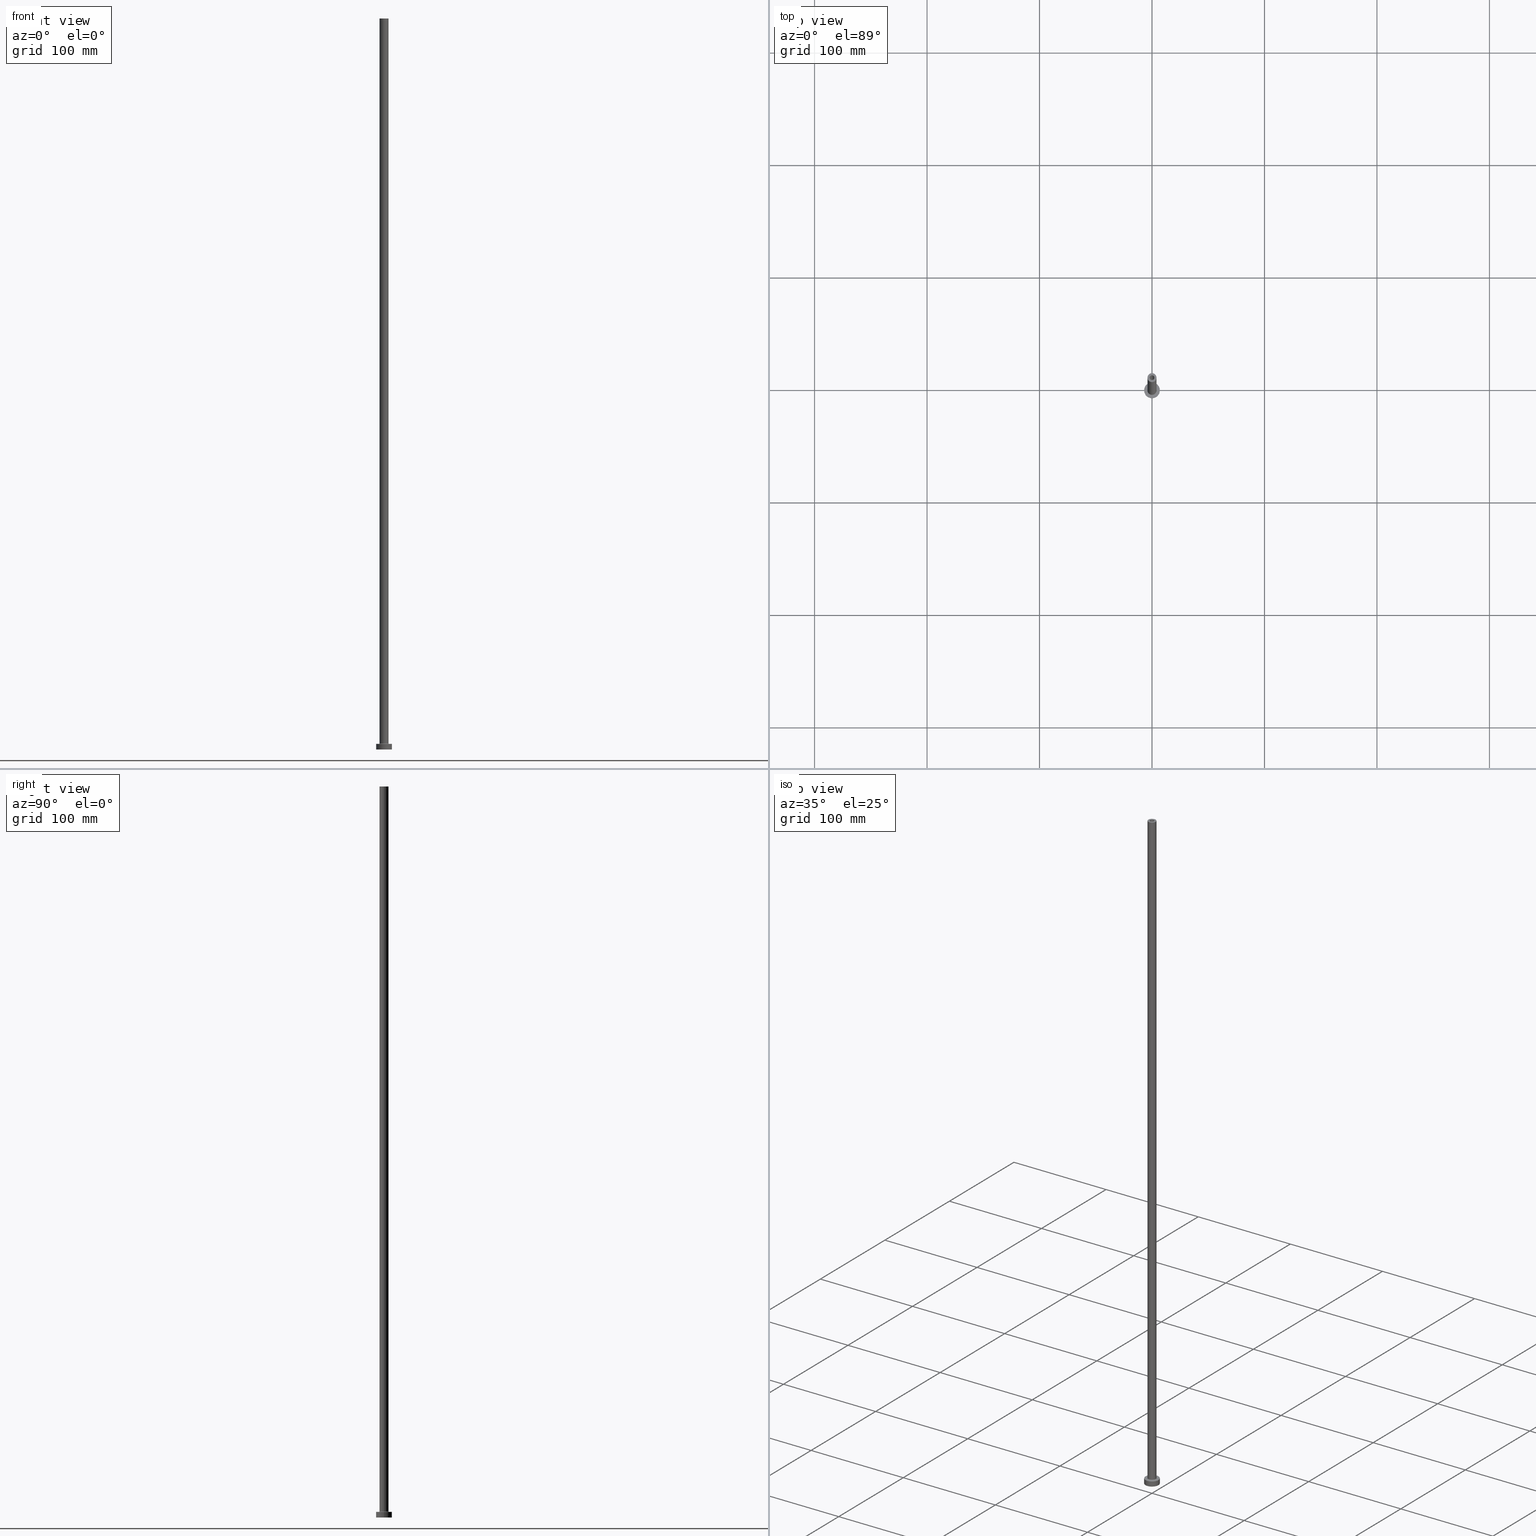
[diagram: canonical four-view strip — front | top / right | iso, engineering-drawing reading convention]
A machine part, canonical four-view strip (front | top / right | iso — engineering-drawing reading convention). The complete STEP part file that produces these views, byte-faithful:
ISO-10303-21;
HEADER;
FILE_DESCRIPTION (( 'STEP AP203' ),
    '1' );
FILE_NAME ('4951.STEP',
    '2023-02-13T17:29:50',
    ( '' ),
    ( '' ),
    'SwSTEP 2.0',
    'SolidWorks 2019',
    '' );
FILE_SCHEMA (( 'CONFIG_CONTROL_DESIGN' ));
ENDSEC;

DATA;
#1 = DIRECTION ( 'NONE',  ( 0.000000000000000000, 0.000000000000000000, 1.000000000000000000 ) ) ;
#2 = CIRCLE ( 'NONE', #24, 7.000000000000000000 ) ;
#3 = ORGANIZATION ( 'NEUR�EN�', 'NEUR�EN�', '' ) ;
#4 = DIRECTION ( 'NONE',  ( 1.000000000000000000, 0.000000000000000000, 0.000000000000000000 ) ) ;
#5 = DIRECTION ( 'NONE',  ( -1.000000000000000000, 0.000000000000000000, 0.000000000000000000 ) ) ;
#6 = CC_DESIGN_PERSON_AND_ORGANIZATION_ASSIGNMENT ( #442, #87, ( #378 ) ) ;
#7 = CYLINDRICAL_SURFACE ( 'NONE', #40, 4.000000000000000000 ) ;
#8 = FACE_OUTER_BOUND ( 'NONE', #368, .T. ) ;
#9 = VECTOR ( 'NONE', #189, 1000.000000000000000 ) ;
#10 = DIRECTION ( 'NONE',  ( 1.000000000000000000, 0.000000000000000000, 0.000000000000000000 ) ) ;
#11 =( NAMED_UNIT ( * ) SI_UNIT ( $, .STERADIAN. ) SOLID_ANGLE_UNIT ( ) );
#12 = ADVANCED_FACE ( 'NONE', ( #64, #148 ), #266, .T. ) ;
#13 = ORIENTED_EDGE ( 'NONE', *, *, #437, .F. ) ;
#14 = DIRECTION ( 'NONE',  ( 0.000000000000000000, 0.000000000000000000, 1.000000000000000000 ) ) ;
#15 = DIRECTION ( 'NONE',  ( 0.000000000000000000, 0.000000000000000000, 1.000000000000000000 ) ) ;
#16 = AXIS2_PLACEMENT_3D ( 'NONE', #205, #310, #457 ) ;
#17 = DATE_TIME_ROLE ( 'classification_date' ) ;
#18 = ORIENTED_EDGE ( 'NONE', *, *, #437, .T. ) ;
#19 = VERTEX_POINT ( 'NONE', #409 ) ;
#20 = LINE ( 'NONE', #339, #244 ) ;
#21 = ADVANCED_FACE ( 'NONE', ( #443, #120 ), #262, .T. ) ;
#22 = ORIENTED_EDGE ( 'NONE', *, *, #274, .F. ) ;
#23 = ORIENTED_EDGE ( 'NONE', *, *, #126, .F. ) ;
#24 = AXIS2_PLACEMENT_3D ( 'NONE', #38, #200, #433 ) ;
#25 = ORIENTED_EDGE ( 'NONE', *, *, #187, .F. ) ;
#26 = AXIS2_PLACEMENT_3D ( 'NONE', #30, #33, #416 ) ;
#27 = FACE_OUTER_BOUND ( 'NONE', #146, .T. ) ;
#28 = ORIENTED_EDGE ( 'NONE', *, *, #183, .T. ) ;
#29 = LINE ( 'NONE', #305, #333 ) ;
#30 = CARTESIAN_POINT ( 'NONE',  ( 0.000000000000000000, 0.000000000000000000, 650.0000000000000000 ) ) ;
#31 = ADVANCED_FACE ( 'NONE', ( #381 ), #101, .F. ) ;
#32 = DIRECTION ( 'NONE',  ( 0.000000000000000000, 0.000000000000000000, 1.000000000000000000 ) ) ;
#33 = DIRECTION ( 'NONE',  ( 0.000000000000000000, 0.000000000000000000, -1.000000000000000000 ) ) ;
#34 = CIRCLE ( 'NONE', #276, 2.100000000000000089 ) ;
#35 = ORIENTED_EDGE ( 'NONE', *, *, #67, .F. ) ;
#36 = DIRECTION ( 'NONE',  ( 0.000000000000000000, 0.000000000000000000, 1.000000000000000000 ) ) ;
#37 = CALENDAR_DATE ( 2023, 13, 2 ) ;
#38 = CARTESIAN_POINT ( 'NONE',  ( 0.000000000000000000, 0.000000000000000000, 5.000000000000000000 ) ) ;
#39 = DIRECTION ( 'NONE',  ( 0.000000000000000000, 0.000000000000000000, 1.000000000000000000 ) ) ;
#40 = AXIS2_PLACEMENT_3D ( 'NONE', #246, #435, #108 ) ;
#41 = DIRECTION ( 'NONE',  ( 0.000000000000000000, 0.000000000000000000, 1.000000000000000000 ) ) ;
#42 = CC_DESIGN_PERSON_AND_ORGANIZATION_ASSIGNMENT ( #224, #222, ( #116 ) ) ;
#43 = CARTESIAN_POINT ( 'NONE',  ( 0.000000000000000000, 0.000000000000000000, 650.0000000000000000 ) ) ;
#44 = VERTEX_POINT ( 'NONE', #210 ) ;
#45 = CARTESIAN_POINT ( 'NONE',  ( 0.000000000000000000, 0.000000000000000000, 0.000000000000000000 ) ) ;
#46 = AXIS2_PLACEMENT_3D ( 'NONE', #285, #41, #139 ) ;
#47 = ADVANCED_FACE ( 'NONE', ( #241, #424 ), #134, .F. ) ;
#48 = CALENDAR_DATE ( 2023, 13, 2 ) ;
#49 = EDGE_LOOP ( 'NONE', ( #280, #351 ) ) ;
#50 = DATE_AND_TIME ( #48, #141 ) ;
#51 = VERTEX_POINT ( 'NONE', #306 ) ;
#52 = ORIENTED_EDGE ( 'NONE', *, *, #347, .F. ) ;
#53 = CALENDAR_DATE ( 2023, 13, 2 ) ;
#54 = ORIENTED_EDGE ( 'NONE', *, *, #61, .T. ) ;
#55 = CARTESIAN_POINT ( 'NONE',  ( -2.250000000000000000, 0.000000000000000000, 0.000000000000000000 ) ) ;
#56 = VECTOR ( 'NONE', #147, 1000.000000000000000 ) ;
#57 = AXIS2_PLACEMENT_3D ( 'NONE', #168, #133, #459 ) ;
#58 = APPROVAL_STATUS ( 'not_yet_approved' ) ;
#59 = EDGE_LOOP ( 'NONE', ( #35, #344, #337, #301 ) ) ;
#60 = DIRECTION ( 'NONE',  ( 0.000000000000000000, 0.000000000000000000, -1.000000000000000000 ) ) ;
#61 = EDGE_CURVE ( 'NONE', #155, #331, #281, .T. ) ;
#62 = DATE_TIME_ROLE ( 'creation_date' ) ;
#63 = DIRECTION ( 'NONE',  ( 1.000000000000000000, 0.000000000000000000, 0.000000000000000000 ) ) ;
#64 = FACE_BOUND ( 'NONE', #197, .T. ) ;
#65 = ORIENTED_EDGE ( 'NONE', *, *, #274, .T. ) ;
#66 = CIRCLE ( 'NONE', #284, 7.000000000000000000 ) ;
#67 = EDGE_CURVE ( 'NONE', #166, #298, #341, .T. ) ;
#68 = ORIENTED_EDGE ( 'NONE', *, *, #397, .T. ) ;
#69 = FACE_OUTER_BOUND ( 'NONE', #129, .T. ) ;
#70 = AXIS2_PLACEMENT_3D ( 'NONE', #357, #39, #184 ) ;
#71 = APPROVAL_PERSON_ORGANIZATION ( #366, #363, #446 ) ;
#72 = CARTESIAN_POINT ( 'NONE',  ( 0.000000000000000000, 0.000000000000000000, 605.0000000000000000 ) ) ;
#73 = EDGE_CURVE ( 'NONE', #331, #412, #214, .T. ) ;
#74 = TOROIDAL_SURFACE ( 'NONE', #70, 4.500000000000000888, 0.5000000000000000000 ) ;
#75 = CC_DESIGN_SECURITY_CLASSIFICATION ( #116, ( #378 ) ) ;
#76 = DIRECTION ( 'NONE',  ( 0.000000000000000000, 0.000000000000000000, 1.000000000000000000 ) ) ;
#77 = PRODUCT ( '4951', '4951', '', ( #292 ) ) ;
#78 = ORIENTED_EDGE ( 'NONE', *, *, #403, .F. ) ;
#79 = DIRECTION ( 'NONE',  ( 1.000000000000000000, 0.000000000000000000, 0.000000000000000000 ) ) ;
#80 = EDGE_CURVE ( 'NONE', #152, #204, #173, .T. ) ;
#81 = VERTEX_POINT ( 'NONE', #175 ) ;
#82 = AXIS2_PLACEMENT_3D ( 'NONE', #138, #282, #79 ) ;
#83 = VECTOR ( 'NONE', #172, 1000.000000000000000 ) ;
#84 = ORIENTED_EDGE ( 'NONE', *, *, #338, .T. ) ;
#85 = SECURITY_CLASSIFICATION_LEVEL ( 'unclassified' ) ;
#86 = DIRECTION ( 'NONE',  ( 0.000000000000000000, 0.000000000000000000, 1.000000000000000000 ) ) ;
#87 = PERSON_AND_ORGANIZATION_ROLE ( 'creator' ) ;
#88 = EDGE_CURVE ( 'NONE', #51, #155, #436, .T. ) ;
#89 = CARTESIAN_POINT ( 'NONE',  ( -4.000000000000000000, 0.000000000000000000, 650.0000000000000000 ) ) ;
#90 = PERSON_AND_ORGANIZATION ( #127, #3 ) ;
#91 = CARTESIAN_POINT ( 'NONE',  ( 0.000000000000000000, 0.000000000000000000, 650.0000000000000000 ) ) ;
#92 = EDGE_CURVE ( 'NONE', #271, #401, #180, .T. ) ;
#93 = ORIENTED_EDGE ( 'NONE', *, *, #283, .T. ) ;
#94 = ORIENTED_EDGE ( 'NONE', *, *, #80, .F. ) ;
#95 = CIRCLE ( 'NONE', #393, 0.5000000000000004441 ) ;
#96 = CARTESIAN_POINT ( 'NONE',  ( 0.000000000000000000, 0.000000000000000000, 5.000000000000000000 ) ) ;
#97 = CC_DESIGN_APPROVAL ( #363, ( #116 ) ) ;
#98 = SHAPE_DEFINITION_REPRESENTATION ( #361, #426 ) ;
#99 = DIRECTION ( 'NONE',  ( -1.000000000000000000, 0.000000000000000000, 0.000000000000000000 ) ) ;
#100 = ORIENTED_EDGE ( 'NONE', *, *, #347, .T. ) ;
#101 = CYLINDRICAL_SURFACE ( 'NONE', #26, 2.100000000000000089 ) ;
#102 = UNCERTAINTY_MEASURE_WITH_UNIT (LENGTH_MEASURE( 1.000000000000000082E-05 ), #379, 'distance_accuracy_value', 'NONE');
#103 = APPROVAL_DATE_TIME ( #386, #363 ) ;
#104 = ADVANCED_FACE ( 'NONE', ( #69 ), #174, .F. ) ;
#105 = ORIENTED_EDGE ( 'NONE', *, *, #439, .F. ) ;
#106 = AXIS2_PLACEMENT_3D ( 'NONE', #111, #286, #394 ) ;
#107 = DIRECTION ( 'NONE',  ( -0.000000000000000000, -0.000000000000000000, -1.000000000000000000 ) ) ;
#108 = DIRECTION ( 'NONE',  ( -1.000000000000000000, 0.000000000000000000, 0.000000000000000000 ) ) ;
#109 = CARTESIAN_POINT ( 'NONE',  ( 4.000000000000000000, 4.898587196589411843E-16, 5.499999999999949374 ) ) ;
#110 = APPROVAL ( #261, 'NEUR�EN�' ) ;
#111 = CARTESIAN_POINT ( 'NONE',  ( 0.000000000000000000, 0.000000000000000000, 605.0000000000000000 ) ) ;
#112 = CARTESIAN_POINT ( 'NONE',  ( -2.100000000000000089, 0.000000000000000000, 605.0000000000000000 ) ) ;
#113 = CIRCLE ( 'NONE', #251, 7.000000000000000000 ) ;
#114 = CARTESIAN_POINT ( 'NONE',  ( 0.000000000000000000, 0.000000000000000000, 650.0000000000000000 ) ) ;
#115 = LOCAL_TIME ( 18, 29, 50.00000000000000000, #369 ) ;
#116 = SECURITY_CLASSIFICATION ( '', '', #85 ) ;
#117 = AXIS2_PLACEMENT_3D ( 'NONE', #207, #209, #376 ) ;
#118 = ORIENTED_EDGE ( 'NONE', *, *, #92, .T. ) ;
#119 = APPLICATION_PROTOCOL_DEFINITION ( 'international standard', 'config_control_design', 1994, #235 ) ;
#120 = FACE_OUTER_BOUND ( 'NONE', #441, .T. ) ;
#121 = CARTESIAN_POINT ( 'NONE',  ( 4.500000000000000888, 0.000000000000000000, 4.999999999999975131 ) ) ;
#122 = CC_DESIGN_PERSON_AND_ORGANIZATION_ASSIGNMENT ( #295, #404, ( #378 ) ) ;
#123 = LINE ( 'NONE', #264, #417 ) ;
#124 = LINE ( 'NONE', #226, #327 ) ;
#125 = TOROIDAL_SURFACE ( 'NONE', #318, 4.500000000000000888, 0.5000000000000000000 ) ;
#126 = EDGE_CURVE ( 'NONE', #309, #44, #29, .T. ) ;
#127 = PERSON ( 'NEUR�EN�', 'NEUR�EN�', 'NEUR�EN�', ('NEUR�EN�'), ('NEUR�EN�'), ('NEUR�EN�') ) ;
#128 = ORIENTED_EDGE ( 'NONE', *, *, #137, .T. ) ;
#129 = EDGE_LOOP ( 'NONE', ( #233, #220, #54, #202 ) ) ;
#130 = AXIS2_PLACEMENT_3D ( 'NONE', #371, #448, #63 ) ;
#131 = DIRECTION ( 'NONE',  ( 1.000000000000000000, 0.000000000000000000, 0.000000000000000000 ) ) ;
#132 = ADVANCED_FACE ( 'NONE', ( #342 ), #304, .F. ) ;
#133 = DIRECTION ( 'NONE',  ( 0.000000000000000000, 0.000000000000000000, -1.000000000000000000 ) ) ;
#134 = PLANE ( 'NONE',  #308 ) ;
#135 = DIRECTION ( 'NONE',  ( 1.000000000000000000, 0.000000000000000000, 0.000000000000000000 ) ) ;
#136 = CIRCLE ( 'NONE', #106, 2.250000000000000000 ) ;
#137 = EDGE_CURVE ( 'NONE', #401, #271, #326, .T. ) ;
#138 = CARTESIAN_POINT ( 'NONE',  ( 0.000000000000000000, 0.000000000000000000, 650.0000000000000000 ) ) ;
#139 = DIRECTION ( 'NONE',  ( 1.000000000000000000, 0.000000000000000000, -0.000000000000000000 ) ) ;
#140 =( NAMED_UNIT ( * ) PLANE_ANGLE_UNIT ( ) SI_UNIT ( $, .RADIAN. ) );
#141 = LOCAL_TIME ( 18, 29, 50.00000000000000000, #410 ) ;
#142 = AXIS2_PLACEMENT_3D ( 'NONE', #72, #452, #135 ) ;
#143 = DIRECTION ( 'NONE',  ( 0.000000000000000000, 0.000000000000000000, 1.000000000000000000 ) ) ;
#144 = ADVANCED_FACE ( 'NONE', ( #278 ), #383, .T. ) ;
#145 = CALENDAR_DATE ( 2023, 13, 2 ) ;
#146 = EDGE_LOOP ( 'NONE', ( #367, #430, #68, #350 ) ) ;
#147 = DIRECTION ( 'NONE',  ( -0.000000000000000000, -0.000000000000000000, -1.000000000000000000 ) ) ;
#148 = FACE_OUTER_BOUND ( 'NONE', #218, .T. ) ;
#149 = CARTESIAN_POINT ( 'NONE',  ( 0.000000000000000000, 0.000000000000000000, 0.000000000000000000 ) ) ;
#150 = AXIS2_PLACEMENT_3D ( 'NONE', #43, #392, #5 ) ;
#151 = EDGE_CURVE ( 'NONE', #204, #152, #34, .T. ) ;
#152 = VERTEX_POINT ( 'NONE', #352 ) ;
#153 = CLOSED_SHELL ( 'NONE', ( #31, #132, #208, #159, #144, #460, #12, #302, #265, #21, #454, #104, #47, #391 ) ) ;
#154 = CALENDAR_DATE ( 2023, 13, 2 ) ;
#155 = VERTEX_POINT ( 'NONE', #253 ) ;
#156 = CARTESIAN_POINT ( 'NONE',  ( 0.000000000000000000, 0.000000000000000000, 5.499999999999949374 ) ) ;
#157 = DATE_AND_TIME ( #154, #256 ) ;
#158 = DIRECTION ( 'NONE',  ( -1.000000000000000000, 0.000000000000000000, 0.000000000000000000 ) ) ;
#159 = ADVANCED_FACE ( 'NONE', ( #432 ), #7, .T. ) ;
#160 = DATE_AND_TIME ( #145, #115 ) ;
#161 = DIRECTION ( 'NONE',  ( 0.000000000000000000, 0.000000000000000000, -1.000000000000000000 ) ) ;
#162 = AXIS2_PLACEMENT_3D ( 'NONE', #149, #272, #221 ) ;
#163 = LOCAL_TIME ( 18, 29, 50.00000000000000000, #362 ) ;
#164 = ORIENTED_EDGE ( 'NONE', *, *, #239, .T. ) ;
#165 = DIRECTION ( 'NONE',  ( 0.000000000000000000, 0.000000000000000000, -1.000000000000000000 ) ) ;
#166 = VERTEX_POINT ( 'NONE', #212 ) ;
#167 = DIRECTION ( 'NONE',  ( 1.000000000000000000, 0.000000000000000000, 0.000000000000000000 ) ) ;
#168 = CARTESIAN_POINT ( 'NONE',  ( 0.000000000000000000, 0.000000000000000000, 611.3639610306788654 ) ) ;
#169 = ORIENTED_EDGE ( 'NONE', *, *, #176, .T. ) ;
#170 = CIRCLE ( 'NONE', #440, 7.000000000000000000 ) ;
#171 = DIRECTION ( 'NONE',  ( -1.000000000000000000, 0.000000000000000000, 0.000000000000000000 ) ) ;
#172 = DIRECTION ( 'NONE',  ( 0.000000000000000000, 0.000000000000000000, -1.000000000000000000 ) ) ;
#173 = CIRCLE ( 'NONE', #252, 2.100000000000000089 ) ;
#174 = CYLINDRICAL_SURFACE ( 'NONE', #57, 2.250000000000000000 ) ;
#175 = CARTESIAN_POINT ( 'NONE',  ( 2.100000000000000089, 2.571758278209441957E-16, 650.0000000000000000 ) ) ;
#176 = EDGE_CURVE ( 'NONE', #177, #421, #179, .T. ) ;
#177 = VERTEX_POINT ( 'NONE', #396 ) ;
#178 = CARTESIAN_POINT ( 'NONE',  ( -4.500000000000000888, 5.510910596163089556E-16, 5.499999999999949374 ) ) ;
#179 = CIRCLE ( 'NONE', #268, 4.000000000000000000 ) ;
#180 = CIRCLE ( 'NONE', #277, 4.500000000000000888 ) ;
#181 = CARTESIAN_POINT ( 'NONE',  ( -7.000000000000000000, 0.000000000000000000, 5.000000000000000000 ) ) ;
#182 = FACE_BOUND ( 'NONE', #247, .T. ) ;
#183 = EDGE_CURVE ( 'NONE', #242, #81, #300, .T. ) ;
#184 = DIRECTION ( 'NONE',  ( 1.000000000000000000, 0.000000000000000000, 0.000000000000000000 ) ) ;
#185 = CIRCLE ( 'NONE', #360, 2.100000000000000089 ) ;
#186 = COORDINATED_UNIVERSAL_TIME_OFFSET ( 1, 0, .AHEAD. ) ;
#187 = EDGE_CURVE ( 'NONE', #19, #44, #170, .T. ) ;
#188 = DATE_AND_TIME ( #53, #163 ) ;
#189 = DIRECTION ( 'NONE',  ( -0.000000000000000000, -0.000000000000000000, -1.000000000000000000 ) ) ;
#190 = CIRCLE ( 'NONE', #456, 0.5000000000000004441 ) ;
#191 = PERSON_AND_ORGANIZATION ( #127, #3 ) ;
#192 = CARTESIAN_POINT ( 'NONE',  ( 0.000000000000000000, 0.000000000000000000, 5.000000000000000000 ) ) ;
#193 = LINE ( 'NONE', #336, #307 ) ;
#194 = DIRECTION ( 'NONE',  ( 0.000000000000000000, 0.000000000000000000, -1.000000000000000000 ) ) ;
#195 = ORIENTED_EDGE ( 'NONE', *, *, #287, .T. ) ;
#196 = LINE ( 'NONE', #267, #9 ) ;
#197 = EDGE_LOOP ( 'NONE', ( #128, #118 ) ) ;
#198 = CARTESIAN_POINT ( 'NONE',  ( 0.000000000000000000, 0.000000000000000000, 5.000000000000000000 ) ) ;
#199 = ORIENTED_EDGE ( 'NONE', *, *, #183, .F. ) ;
#200 = DIRECTION ( 'NONE',  ( 0.000000000000000000, 0.000000000000000000, 1.000000000000000000 ) ) ;
#201 = ORIENTED_EDGE ( 'NONE', *, *, #73, .F. ) ;
#202 = ORIENTED_EDGE ( 'NONE', *, *, #73, .T. ) ;
#203 = APPROVAL ( #219, 'NEUR�EN�' ) ;
#204 = VERTEX_POINT ( 'NONE', #112 ) ;
#205 = CARTESIAN_POINT ( 'NONE',  ( 0.000000000000000000, 0.000000000000000000, 5.000000000000000000 ) ) ;
#206 = AXIS2_PLACEMENT_3D ( 'NONE', #270, #232, #406 ) ;
#207 = CARTESIAN_POINT ( 'NONE',  ( 0.000000000000000000, 0.000000000000000000, 0.000000000000000000 ) ) ;
#208 = ADVANCED_FACE ( 'NONE', ( #325 ), #74, .F. ) ;
#209 = DIRECTION ( 'NONE',  ( -0.000000000000000000, -0.000000000000000000, -1.000000000000000000 ) ) ;
#210 = CARTESIAN_POINT ( 'NONE',  ( 7.000000000000000000, 8.572527594031473190E-16, 0.000000000000000000 ) ) ;
#211 = APPLICATION_CONTEXT ( 'configuration controlled 3d designs of mechanical parts and assemblies' ) ;
#212 = CARTESIAN_POINT ( 'NONE',  ( -4.000000000000000000, 0.000000000000000000, 5.499999999999949374 ) ) ;
#213 = AXIS2_PLACEMENT_3D ( 'NONE', #96, #455, #131 ) ;
#214 = CIRCLE ( 'NONE', #117, 2.250000000000000000 ) ;
#215 = CARTESIAN_POINT ( 'NONE',  ( 0.000000000000000000, 0.000000000000000000, 0.000000000000000000 ) ) ;
#216 = CC_DESIGN_PERSON_AND_ORGANIZATION_ASSIGNMENT ( #90, #257, ( #294 ) ) ;
#217 = EDGE_CURVE ( 'NONE', #166, #271, #95, .T. ) ;
#218 = EDGE_LOOP ( 'NONE', ( #65, #93 ) ) ;
#219 = APPROVAL_STATUS ( 'not_yet_approved' ) ;
#220 = ORIENTED_EDGE ( 'NONE', *, *, #88, .T. ) ;
#221 = DIRECTION ( 'NONE',  ( 1.000000000000000000, 0.000000000000000000, 0.000000000000000000 ) ) ;
#222 = PERSON_AND_ORGANIZATION_ROLE ( 'classification_officer' ) ;
#223 = VERTEX_POINT ( 'NONE', #181 ) ;
#224 = PERSON_AND_ORGANIZATION ( #127, #3 ) ;
#225 = ORIENTED_EDGE ( 'NONE', *, *, #239, .F. ) ;
#226 = CARTESIAN_POINT ( 'NONE',  ( 2.250000000000000000, 2.755455298081544285E-16, 611.3639610306788654 ) ) ;
#227 = LOCAL_TIME ( 18, 29, 50.00000000000000000, #415 ) ;
#228 = APPROVAL_ROLE ( '' ) ;
#229 = ORIENTED_EDGE ( 'NONE', *, *, #187, .T. ) ;
#230 = CARTESIAN_POINT ( 'NONE',  ( 0.000000000000000000, 0.000000000000000000, 650.0000000000000000 ) ) ;
#231 = CC_DESIGN_DATE_AND_TIME_ASSIGNMENT ( #188, #17, ( #116 ) ) ;
#232 = DIRECTION ( 'NONE',  ( 0.000000000000000000, 0.000000000000000000, 1.000000000000000000 ) ) ;
#233 = ORIENTED_EDGE ( 'NONE', *, *, #427, .F. ) ;
#234 = DIRECTION ( 'NONE',  ( 0.000000000000000000, 0.000000000000000000, 1.000000000000000000 ) ) ;
#235 = APPLICATION_CONTEXT ( 'configuration controlled 3d designs of mechanical parts and assemblies' ) ;
#236 = EDGE_LOOP ( 'NONE', ( #23, #22, #380, #229 ) ) ;
#237 = EDGE_LOOP ( 'NONE', ( #411, #387 ) ) ;
#238 = CIRCLE ( 'NONE', #130, 4.000000000000000000 ) ;
#239 = EDGE_CURVE ( 'NONE', #44, #19, #66, .T. ) ;
#240 = EDGE_LOOP ( 'NONE', ( #450, #348, #375, #447 ) ) ;
#241 = FACE_BOUND ( 'NONE', #237, .T. ) ;
#242 = VERTEX_POINT ( 'NONE', #431 ) ;
#243 = ORIENTED_EDGE ( 'NONE', *, *, #283, .F. ) ;
#244 = VECTOR ( 'NONE', #296, 1000.000000000000000 ) ;
#245 = AXIS2_PLACEMENT_3D ( 'NONE', #192, #15, #290 ) ;
#246 = CARTESIAN_POINT ( 'NONE',  ( 0.000000000000000000, 0.000000000000000000, 650.0000000000000000 ) ) ;
#247 = EDGE_LOOP ( 'NONE', ( #201, #359 ) ) ;
#248 = CARTESIAN_POINT ( 'NONE',  ( 0.000000000000000000, 0.000000000000000000, 5.000000000000000000 ) ) ;
#249 = CYLINDRICAL_SURFACE ( 'NONE', #150, 4.000000000000000000 ) ;
#250 = DIRECTION ( 'NONE',  ( 1.224646799147353207E-16, 1.000000000000000000, -0.000000000000000000 ) ) ;
#251 = AXIS2_PLACEMENT_3D ( 'NONE', #248, #14, #254 ) ;
#252 = AXIS2_PLACEMENT_3D ( 'NONE', #422, #32, #167 ) ;
#253 = CARTESIAN_POINT ( 'NONE',  ( -2.250000000000000000, 0.000000000000000000, 605.0000000000000000 ) ) ;
#254 = DIRECTION ( 'NONE',  ( 1.000000000000000000, 0.000000000000000000, 0.000000000000000000 ) ) ;
#255 = EDGE_CURVE ( 'NONE', #155, #51, #136, .T. ) ;
#256 = LOCAL_TIME ( 18, 29, 50.00000000000000000, #186 ) ;
#257 = PERSON_AND_ORGANIZATION_ROLE ( 'creator' ) ;
#258 = ORIENTED_EDGE ( 'NONE', *, *, #338, .F. ) ;
#259 = APPROVAL_PERSON_ORGANIZATION ( #191, #203, #228 ) ;
#260 = DIRECTION ( 'NONE',  ( 0.000000000000000000, 0.000000000000000000, 1.000000000000000000 ) ) ;
#261 = APPROVAL_STATUS ( 'not_yet_approved' ) ;
#262 = PLANE ( 'NONE',  #269 ) ;
#263 = PERSON_AND_ORGANIZATION_ROLE ( 'design_owner' ) ;
#264 = CARTESIAN_POINT ( 'NONE',  ( 2.100000000000000089, 2.571758278209441957E-16, 650.0000000000000000 ) ) ;
#265 = ADVANCED_FACE ( 'NONE', ( #438 ), #249, .T. ) ;
#266 = PLANE ( 'NONE',  #245 ) ;
#267 = CARTESIAN_POINT ( 'NONE',  ( -7.000000000000000000, 0.000000000000000000, 5.000000000000000000 ) ) ;
#268 = AXIS2_PLACEMENT_3D ( 'NONE', #114, #76, #324 ) ;
#269 = AXIS2_PLACEMENT_3D ( 'NONE', #405, #86, #317 ) ;
#270 = CARTESIAN_POINT ( 'NONE',  ( 0.000000000000000000, 0.000000000000000000, 0.000000000000000000 ) ) ;
#271 = VERTEX_POINT ( 'NONE', #461 ) ;
#272 = DIRECTION ( 'NONE',  ( -0.000000000000000000, -0.000000000000000000, -1.000000000000000000 ) ) ;
#273 = ORIENTED_EDGE ( 'NONE', *, *, #67, .T. ) ;
#274 = EDGE_CURVE ( 'NONE', #223, #309, #2, .T. ) ;
#275 = CARTESIAN_POINT ( 'NONE',  ( 0.000000000000000000, 0.000000000000000000, 611.3639610306788654 ) ) ;
#276 = AXIS2_PLACEMENT_3D ( 'NONE', #349, #36, #323 ) ;
#277 = AXIS2_PLACEMENT_3D ( 'NONE', #198, #314, #413 ) ;
#278 = FACE_OUTER_BOUND ( 'NONE', #451, .T. ) ;
#279 = FACE_OUTER_BOUND ( 'NONE', #236, .T. ) ;
#280 = ORIENTED_EDGE ( 'NONE', *, *, #255, .F. ) ;
#281 = LINE ( 'NONE', #311, #83 ) ;
#282 = DIRECTION ( 'NONE',  ( 0.000000000000000000, 0.000000000000000000, 1.000000000000000000 ) ) ;
#283 = EDGE_CURVE ( 'NONE', #309, #223, #113, .T. ) ;
#284 = AXIS2_PLACEMENT_3D ( 'NONE', #215, #143, #4 ) ;
#285 = CARTESIAN_POINT ( 'NONE',  ( 0.000000000000000000, 0.000000000000000000, 0.000000000000000000 ) ) ;
#286 = DIRECTION ( 'NONE',  ( 0.000000000000000000, 0.000000000000000000, 1.000000000000000000 ) ) ;
#287 = EDGE_CURVE ( 'NONE', #421, #166, #398, .T. ) ;
#288 = ORIENTED_EDGE ( 'NONE', *, *, #126, .T. ) ;
#289 = PERSON_AND_ORGANIZATION ( #127, #3 ) ;
#290 = DIRECTION ( 'NONE',  ( 1.000000000000000000, 0.000000000000000000, -0.000000000000000000 ) ) ;
#291 = CARTESIAN_POINT ( 'NONE',  ( 4.500000000000000888, 0.000000000000000000, 5.499999999999949374 ) ) ;
#292 = MECHANICAL_CONTEXT ( 'NONE', #211, 'mechanical' ) ;
#293 = FACE_OUTER_BOUND ( 'NONE', #382, .T. ) ;
#294 = PRODUCT_DEFINITION ( 'NEZN�M�', '', #378, #313 ) ;
#295 = PERSON_AND_ORGANIZATION ( #127, #3 ) ;
#296 = DIRECTION ( 'NONE',  ( -0.000000000000000000, -0.000000000000000000, -1.000000000000000000 ) ) ;
#297 = APPROVAL_ROLE ( '' ) ;
#298 = VERTEX_POINT ( 'NONE', #109 ) ;
#299 = DIRECTION ( 'NONE',  ( 0.000000000000000000, 0.000000000000000000, -1.000000000000000000 ) ) ;
#300 = CIRCLE ( 'NONE', #82, 2.100000000000000089 ) ;
#301 = ORIENTED_EDGE ( 'NONE', *, *, #397, .F. ) ;
#302 = ADVANCED_FACE ( 'NONE', ( #182, #8 ), #354, .F. ) ;
#303 = CARTESIAN_POINT ( 'NONE',  ( 0.000000000000000000, 0.000000000000000000, 5.000000000000000000 ) ) ;
#304 = CYLINDRICAL_SURFACE ( 'NONE', #355, 2.250000000000000000 ) ;
#305 = CARTESIAN_POINT ( 'NONE',  ( 7.000000000000000000, 8.572527594031473190E-16, 5.000000000000000000 ) ) ;
#306 = CARTESIAN_POINT ( 'NONE',  ( 2.250000000000000000, 2.755455298081544285E-16, 605.0000000000000000 ) ) ;
#307 = VECTOR ( 'NONE', #299, 1000.000000000000000 ) ;
#308 = AXIS2_PLACEMENT_3D ( 'NONE', #388, #1, #384 ) ;
#309 = VERTEX_POINT ( 'NONE', #322 ) ;
#310 = DIRECTION ( 'NONE',  ( -0.000000000000000000, -0.000000000000000000, -1.000000000000000000 ) ) ;
#311 = CARTESIAN_POINT ( 'NONE',  ( -2.250000000000000000, 0.000000000000000000, 611.3639610306788654 ) ) ;
#312 = CARTESIAN_POINT ( 'NONE',  ( 0.000000000000000000, 0.000000000000000000, 5.499999999999949374 ) ) ;
#313 = DESIGN_CONTEXT ( 'detailed design', #235, 'design' ) ;
#314 = DIRECTION ( 'NONE',  ( -0.000000000000000000, -0.000000000000000000, -1.000000000000000000 ) ) ;
#315 = CC_DESIGN_PERSON_AND_ORGANIZATION_ASSIGNMENT ( #328, #263, ( #77 ) ) ;
#316 = EDGE_LOOP ( 'NONE', ( #105, #52, #195, #273 ) ) ;
#317 = DIRECTION ( 'NONE',  ( 1.000000000000000000, 0.000000000000000000, -0.000000000000000000 ) ) ;
#318 = AXIS2_PLACEMENT_3D ( 'NONE', #312, #345, #425 ) ;
#319 = DIRECTION ( 'NONE',  ( -1.000000000000000000, 1.224646799147351482E-16, 0.000000000000000000 ) ) ;
#320 = APPROVAL_PERSON_ORGANIZATION ( #289, #110, #297 ) ;
#321 = CC_DESIGN_DATE_AND_TIME_ASSIGNMENT ( #160, #62, ( #294 ) ) ;
#322 = CARTESIAN_POINT ( 'NONE',  ( 7.000000000000000000, 8.572527594031473190E-16, 5.000000000000000000 ) ) ;
#323 = DIRECTION ( 'NONE',  ( 1.000000000000000000, 0.000000000000000000, 0.000000000000000000 ) ) ;
#324 = DIRECTION ( 'NONE',  ( 1.000000000000000000, 0.000000000000000000, 0.000000000000000000 ) ) ;
#325 = FACE_OUTER_BOUND ( 'NONE', #59, .T. ) ;
#326 = CIRCLE ( 'NONE', #213, 4.500000000000000888 ) ;
#327 = VECTOR ( 'NONE', #60, 1000.000000000000000 ) ;
#328 = PERSON_AND_ORGANIZATION ( #127, #3 ) ;
#329 = ORIENTED_EDGE ( 'NONE', *, *, #334, .F. ) ;
#330 = EDGE_LOOP ( 'NONE', ( #343, #407, #423, #385 ) ) ;
#331 = VERTEX_POINT ( 'NONE', #55 ) ;
#332 = APPLICATION_PROTOCOL_DEFINITION ( 'international standard', 'config_control_design', 1994, #211 ) ;
#333 = VECTOR ( 'NONE', #389, 1000.000000000000000 ) ;
#334 = EDGE_CURVE ( 'NONE', #223, #19, #196, .T. ) ;
#335 = APPROVAL_DATE_TIME ( #157, #203 ) ;
#336 = CARTESIAN_POINT ( 'NONE',  ( -2.100000000000000089, 0.000000000000000000, 650.0000000000000000 ) ) ;
#337 = ORIENTED_EDGE ( 'NONE', *, *, #137, .F. ) ;
#338 = EDGE_CURVE ( 'NONE', #81, #242, #185, .T. ) ;
#339 = CARTESIAN_POINT ( 'NONE',  ( 4.000000000000000000, 4.898587196589411843E-16, 650.0000000000000000 ) ) ;
#340 =( GEOMETRIC_REPRESENTATION_CONTEXT ( 3 ) GLOBAL_UNCERTAINTY_ASSIGNED_CONTEXT ( ( #102 ) ) GLOBAL_UNIT_ASSIGNED_CONTEXT ( ( #379, #140, #11 ) ) REPRESENTATION_CONTEXT ( 'NONE', 'WORKASPACE' ) );
#341 = CIRCLE ( 'NONE', #418, 4.000000000000000000 ) ;
#342 = FACE_OUTER_BOUND ( 'NONE', #330, .T. ) ;
#343 = ORIENTED_EDGE ( 'NONE', *, *, #255, .T. ) ;
#344 = ORIENTED_EDGE ( 'NONE', *, *, #217, .T. ) ;
#345 = DIRECTION ( 'NONE',  ( 0.000000000000000000, 0.000000000000000000, 1.000000000000000000 ) ) ;
#346 = AXIS2_PLACEMENT_3D ( 'NONE', #303, #107, #99 ) ;
#347 = EDGE_CURVE ( 'NONE', #421, #177, #238, .T. ) ;
#348 = ORIENTED_EDGE ( 'NONE', *, *, #439, .T. ) ;
#349 = CARTESIAN_POINT ( 'NONE',  ( 0.000000000000000000, 0.000000000000000000, 605.0000000000000000 ) ) ;
#350 = ORIENTED_EDGE ( 'NONE', *, *, #92, .F. ) ;
#351 = ORIENTED_EDGE ( 'NONE', *, *, #88, .F. ) ;
#352 = CARTESIAN_POINT ( 'NONE',  ( 2.100000000000000089, 2.571758278209441957E-16, 605.0000000000000000 ) ) ;
#353 = EDGE_CURVE ( 'NONE', #298, #166, #365, .T. ) ;
#354 = PLANE ( 'NONE',  #46 ) ;
#355 = AXIS2_PLACEMENT_3D ( 'NONE', #275, #414, #171 ) ;
#356 = CC_DESIGN_APPROVAL ( #110, ( #378 ) ) ;
#357 = CARTESIAN_POINT ( 'NONE',  ( 0.000000000000000000, 0.000000000000000000, 5.499999999999949374 ) ) ;
#358 = DIRECTION ( 'NONE',  ( 0.000000000000000000, 0.000000000000000000, 1.000000000000000000 ) ) ;
#359 = ORIENTED_EDGE ( 'NONE', *, *, #372, .F. ) ;
#360 = AXIS2_PLACEMENT_3D ( 'NONE', #230, #260, #408 ) ;
#361 = PRODUCT_DEFINITION_SHAPE ( 'NONE', 'NONE',  #294 ) ;
#362 = COORDINATED_UNIVERSAL_TIME_OFFSET ( 1, 0, .AHEAD. ) ;
#363 = APPROVAL ( #58, 'NEUR�EN�' ) ;
#364 = EDGE_LOOP ( 'NONE', ( #28, #370, #377, #13 ) ) ;
#365 = CIRCLE ( 'NONE', #399, 4.000000000000000000 ) ;
#366 = PERSON_AND_ORGANIZATION ( #127, #3 ) ;
#367 = ORIENTED_EDGE ( 'NONE', *, *, #217, .F. ) ;
#368 = EDGE_LOOP ( 'NONE', ( #25, #225 ) ) ;
#369 = COORDINATED_UNIVERSAL_TIME_OFFSET ( 1, 0, .AHEAD. ) ;
#370 = ORIENTED_EDGE ( 'NONE', *, *, #403, .T. ) ;
#371 = CARTESIAN_POINT ( 'NONE',  ( 0.000000000000000000, 0.000000000000000000, 650.0000000000000000 ) ) ;
#372 = EDGE_CURVE ( 'NONE', #412, #331, #428, .T. ) ;
#373 = EDGE_LOOP ( 'NONE', ( #199, #258 ) ) ;
#374 = CARTESIAN_POINT ( 'NONE',  ( 2.250000000000000000, 2.755455298081544285E-16, 0.000000000000000000 ) ) ;
#375 = ORIENTED_EDGE ( 'NONE', *, *, #353, .T. ) ;
#376 = DIRECTION ( 'NONE',  ( 1.000000000000000000, 0.000000000000000000, 0.000000000000000000 ) ) ;
#377 = ORIENTED_EDGE ( 'NONE', *, *, #151, .F. ) ;
#378 = PRODUCT_DEFINITION_FORMATION_WITH_SPECIFIED_SOURCE ( 'LIBOVOLN�', '', #77, .NOT_KNOWN. ) ;
#379 =( LENGTH_UNIT ( ) NAMED_UNIT ( * ) SI_UNIT ( .MILLI., .METRE. ) );
#380 = ORIENTED_EDGE ( 'NONE', *, *, #334, .T. ) ;
#381 = FACE_OUTER_BOUND ( 'NONE', #364, .T. ) ;
#382 = EDGE_LOOP ( 'NONE', ( #78, #84, #18, #94 ) ) ;
#383 = CYLINDRICAL_SURFACE ( 'NONE', #16, 7.000000000000000000 ) ;
#384 = DIRECTION ( 'NONE',  ( 1.000000000000000000, 0.000000000000000000, -0.000000000000000000 ) ) ;
#385 = ORIENTED_EDGE ( 'NONE', *, *, #61, .F. ) ;
#386 = DATE_AND_TIME ( #37, #227 ) ;
#387 = ORIENTED_EDGE ( 'NONE', *, *, #80, .T. ) ;
#388 = CARTESIAN_POINT ( 'NONE',  ( 0.000000000000000000, 0.000000000000000000, 605.0000000000000000 ) ) ;
#389 = DIRECTION ( 'NONE',  ( -0.000000000000000000, -0.000000000000000000, -1.000000000000000000 ) ) ;
#390 = DIRECTION ( 'NONE',  ( 0.000000000000000000, 0.000000000000000000, 1.000000000000000000 ) ) ;
#391 = ADVANCED_FACE ( 'NONE', ( #293 ), #445, .F. ) ;
#392 = DIRECTION ( 'NONE',  ( -0.000000000000000000, -0.000000000000000000, -1.000000000000000000 ) ) ;
#393 = AXIS2_PLACEMENT_3D ( 'NONE', #178, #250, #319 ) ;
#394 = DIRECTION ( 'NONE',  ( 1.000000000000000000, 0.000000000000000000, 0.000000000000000000 ) ) ;
#395 = CARTESIAN_POINT ( 'NONE',  ( -4.000000000000000000, 0.000000000000000000, 650.0000000000000000 ) ) ;
#396 = CARTESIAN_POINT ( 'NONE',  ( 4.000000000000000000, 4.898587196589411843E-16, 650.0000000000000000 ) ) ;
#397 = EDGE_CURVE ( 'NONE', #298, #401, #190, .T. ) ;
#398 = LINE ( 'NONE', #395, #56 ) ;
#399 = AXIS2_PLACEMENT_3D ( 'NONE', #156, #234, #402 ) ;
#400 = APPROVAL_DATE_TIME ( #50, #110 ) ;
#401 = VERTEX_POINT ( 'NONE', #121 ) ;
#402 = DIRECTION ( 'NONE',  ( 1.000000000000000000, 0.000000000000000000, 0.000000000000000000 ) ) ;
#403 = EDGE_CURVE ( 'NONE', #81, #152, #123, .T. ) ;
#404 = PERSON_AND_ORGANIZATION_ROLE ( 'design_supplier' ) ;
#405 = CARTESIAN_POINT ( 'NONE',  ( 0.000000000000000000, 0.000000000000000000, 650.0000000000000000 ) ) ;
#406 = DIRECTION ( 'NONE',  ( 1.000000000000000000, 0.000000000000000000, 0.000000000000000000 ) ) ;
#407 = ORIENTED_EDGE ( 'NONE', *, *, #427, .T. ) ;
#408 = DIRECTION ( 'NONE',  ( 1.000000000000000000, 0.000000000000000000, 0.000000000000000000 ) ) ;
#409 = CARTESIAN_POINT ( 'NONE',  ( -7.000000000000000000, 0.000000000000000000, 0.000000000000000000 ) ) ;
#410 = COORDINATED_UNIVERSAL_TIME_OFFSET ( 1, 0, .AHEAD. ) ;
#411 = ORIENTED_EDGE ( 'NONE', *, *, #151, .T. ) ;
#412 = VERTEX_POINT ( 'NONE', #374 ) ;
#413 = DIRECTION ( 'NONE',  ( 1.000000000000000000, 0.000000000000000000, 0.000000000000000000 ) ) ;
#414 = DIRECTION ( 'NONE',  ( 0.000000000000000000, 0.000000000000000000, -1.000000000000000000 ) ) ;
#415 = COORDINATED_UNIVERSAL_TIME_OFFSET ( 1, 0, .AHEAD. ) ;
#416 = DIRECTION ( 'NONE',  ( -1.000000000000000000, 0.000000000000000000, 0.000000000000000000 ) ) ;
#417 = VECTOR ( 'NONE', #194, 1000.000000000000000 ) ;
#418 = AXIS2_PLACEMENT_3D ( 'NONE', #458, #390, #420 ) ;
#419 = PRODUCT_RELATED_PRODUCT_CATEGORY ( 'detail', '', ( #77 ) ) ;
#420 = DIRECTION ( 'NONE',  ( 1.000000000000000000, 0.000000000000000000, 0.000000000000000000 ) ) ;
#421 = VERTEX_POINT ( 'NONE', #89 ) ;
#422 = CARTESIAN_POINT ( 'NONE',  ( 0.000000000000000000, 0.000000000000000000, 605.0000000000000000 ) ) ;
#423 = ORIENTED_EDGE ( 'NONE', *, *, #372, .T. ) ;
#424 = FACE_OUTER_BOUND ( 'NONE', #49, .T. ) ;
#425 = DIRECTION ( 'NONE',  ( 1.000000000000000000, 0.000000000000000000, 0.000000000000000000 ) ) ;
#426 = ADVANCED_BREP_SHAPE_REPRESENTATION ( '4951', ( #429, #206 ), #340 ) ;
#427 = EDGE_CURVE ( 'NONE', #51, #412, #124, .T. ) ;
#428 = CIRCLE ( 'NONE', #162, 2.250000000000000000 ) ;
#429 = MANIFOLD_SOLID_BREP ( 'Odebrat vysunut�m4', #153 ) ;
#430 = ORIENTED_EDGE ( 'NONE', *, *, #353, .F. ) ;
#431 = CARTESIAN_POINT ( 'NONE',  ( -2.100000000000000089, 0.000000000000000000, 650.0000000000000000 ) ) ;
#432 = FACE_OUTER_BOUND ( 'NONE', #240, .T. ) ;
#433 = DIRECTION ( 'NONE',  ( 1.000000000000000000, 0.000000000000000000, 0.000000000000000000 ) ) ;
#434 = AXIS2_PLACEMENT_3D ( 'NONE', #91, #161, #158 ) ;
#435 = DIRECTION ( 'NONE',  ( -0.000000000000000000, -0.000000000000000000, -1.000000000000000000 ) ) ;
#436 = CIRCLE ( 'NONE', #142, 2.250000000000000000 ) ;
#437 = EDGE_CURVE ( 'NONE', #242, #204, #193, .T. ) ;
#438 = FACE_OUTER_BOUND ( 'NONE', #316, .T. ) ;
#439 = EDGE_CURVE ( 'NONE', #177, #298, #20, .T. ) ;
#440 = AXIS2_PLACEMENT_3D ( 'NONE', #45, #358, #10 ) ;
#441 = EDGE_LOOP ( 'NONE', ( #100, #169 ) ) ;
#442 = PERSON_AND_ORGANIZATION ( #127, #3 ) ;
#443 = FACE_BOUND ( 'NONE', #373, .T. ) ;
#444 = DIRECTION ( 'NONE',  ( 0.000000000000000000, -1.000000000000000000, 0.000000000000000000 ) ) ;
#445 = CYLINDRICAL_SURFACE ( 'NONE', #434, 2.100000000000000089 ) ;
#446 = APPROVAL_ROLE ( '' ) ;
#447 = ORIENTED_EDGE ( 'NONE', *, *, #287, .F. ) ;
#448 = DIRECTION ( 'NONE',  ( 0.000000000000000000, 0.000000000000000000, 1.000000000000000000 ) ) ;
#449 = CC_DESIGN_APPROVAL ( #203, ( #294 ) ) ;
#450 = ORIENTED_EDGE ( 'NONE', *, *, #176, .F. ) ;
#451 = EDGE_LOOP ( 'NONE', ( #243, #288, #164, #329 ) ) ;
#452 = DIRECTION ( 'NONE',  ( 0.000000000000000000, 0.000000000000000000, 1.000000000000000000 ) ) ;
#453 = CYLINDRICAL_SURFACE ( 'NONE', #346, 7.000000000000000000 ) ;
#454 = ADVANCED_FACE ( 'NONE', ( #27 ), #125, .F. ) ;
#455 = DIRECTION ( 'NONE',  ( -0.000000000000000000, -0.000000000000000000, -1.000000000000000000 ) ) ;
#456 = AXIS2_PLACEMENT_3D ( 'NONE', #291, #444, #165 ) ;
#457 = DIRECTION ( 'NONE',  ( -1.000000000000000000, 0.000000000000000000, 0.000000000000000000 ) ) ;
#458 = CARTESIAN_POINT ( 'NONE',  ( 0.000000000000000000, 0.000000000000000000, 5.499999999999949374 ) ) ;
#459 = DIRECTION ( 'NONE',  ( -1.000000000000000000, 0.000000000000000000, 0.000000000000000000 ) ) ;
#460 = ADVANCED_FACE ( 'NONE', ( #279 ), #453, .T. ) ;
#461 = CARTESIAN_POINT ( 'NONE',  ( -4.500000000000000888, 5.510910596163088569E-16, 4.999999999999975131 ) ) ;
ENDSEC;
END-ISO-10303-21;
